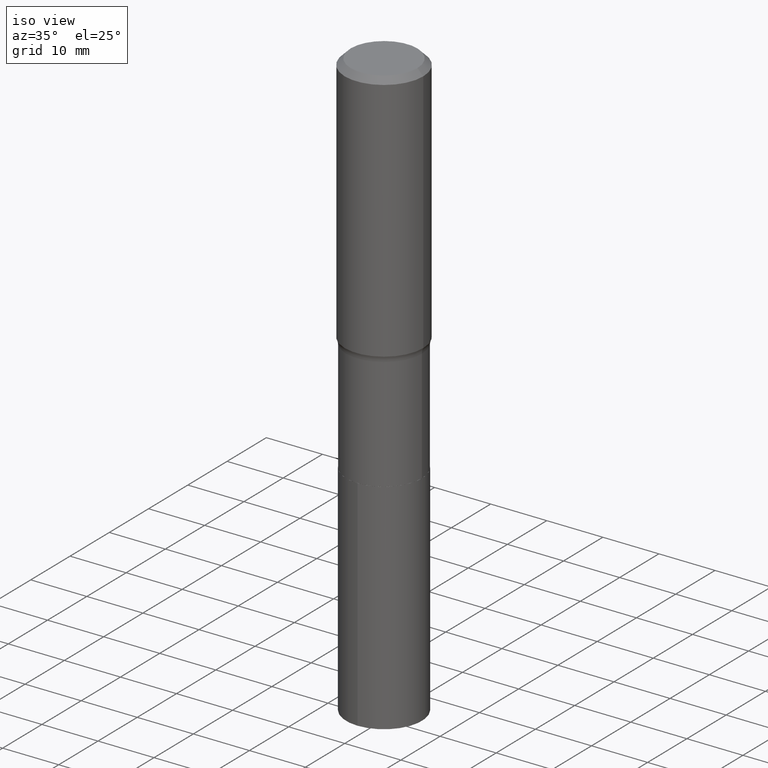
[diagram: clean part render]
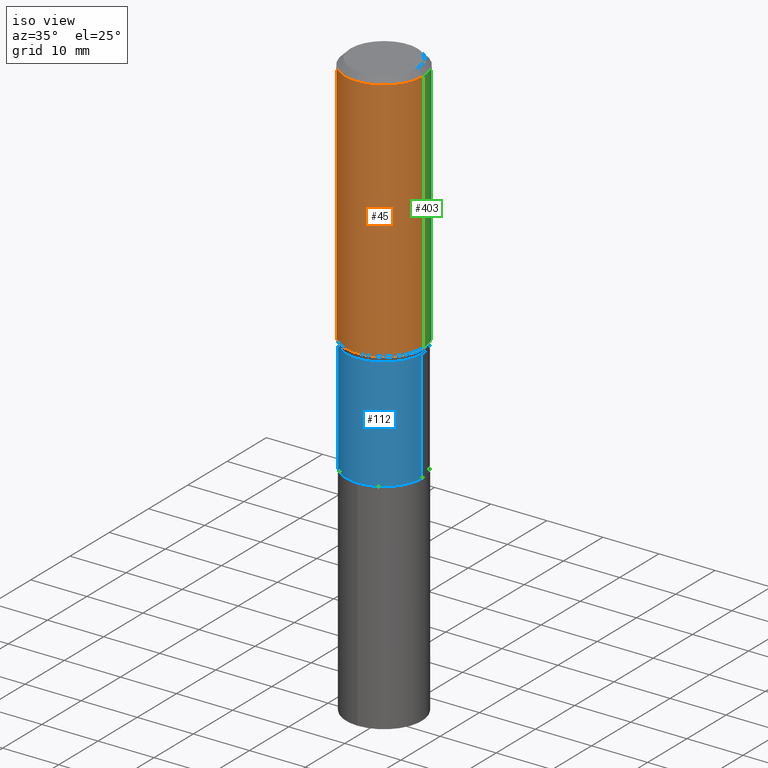
[diagram: same view with three faces highlighted in distinct colors, each labeled with its STEP entity id]
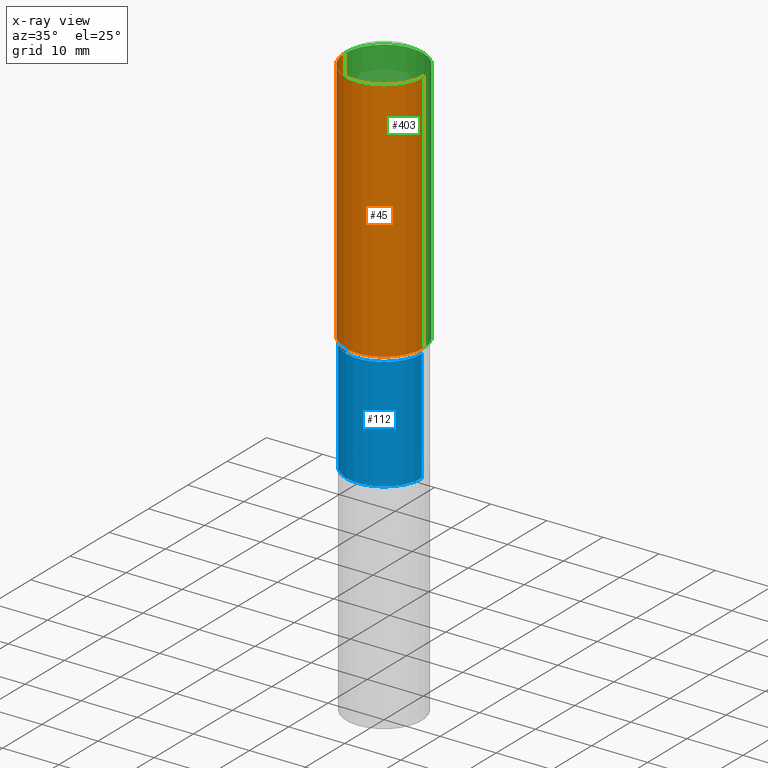
[diagram: x-ray of the same camera — body ghosted, the three highlighted faces saturated]
A machine part, iso view with three faces highlighted in distinct colors.
The next image is the same camera in x-ray (body ghosted, the three faces saturated) — at least one of them is partly hidden behind the body in this view.
Their STEP definitions:

[orange] entity #45 — the highlighted cylindrical surface (partial cylindrical patch) has radius 7.0002 mm, axis along (-0, 0, 1).
#3 = CARTESIAN_POINT ( 'NONE',  ( 1.010956804476941522E-30, -1.443378385477764823E-16, -0.04134000000000024461 ) ) ;
#6 = ORIENTED_EDGE ( 'NONE', *, *, #51, .F. ) ;
#20 = CARTESIAN_POINT ( 'NONE',  ( 0.2756000000000001782, -8.088610654721802073E-15, -1.765470166537925101 ) ) ;
#36 = CARTESIAN_POINT ( 'NONE',  ( 4.317402220518974111E-29, -6.164106140751466330E-15, -1.765470166537925101 ) ) ;
#38 = EDGE_LOOP ( 'NONE', ( #6, #232, #91, #225 ) ) ;
#39 = AXIS2_PLACEMENT_3D ( 'NONE', #3, #88, #162 ) ;
#40 = CIRCLE ( 'NONE', #230, 0.2756000000000001782 ) ;
#42 = DIRECTION ( 'NONE',  ( -2.445468806185136597E-29, 3.491481338843145583E-15, 1.000000000000000000 ) ) ;
#45 = ADVANCED_FACE ( 'NONE', ( #117 ), #111, .T. ) ;
#51 = EDGE_CURVE ( 'NONE', #309, #377, #149, .T. ) ;
#74 = DIRECTION ( 'NONE',  ( 1.000000000000000000, -6.982962677686267499E-15, 4.876176775795935793E-29 ) ) ;
#80 = CARTESIAN_POINT ( 'NONE',  ( 0.000000000000000000, 0.000000000000000000, 0.000000000000000000 ) ) ;
#88 = DIRECTION ( 'NONE',  ( -2.445468806185136597E-29, 3.491481338843145583E-15, 1.000000000000000000 ) ) ;
#91 = ORIENTED_EDGE ( 'NONE', *, *, #139, .T. ) ;
#101 = CARTESIAN_POINT ( 'NONE',  ( 0.2756000000000000116, -2.068842352518111732E-15, -0.04134000000000024461 ) ) ;
#104 = VERTEX_POINT ( 'NONE', #20 ) ;
#111 = CYLINDRICAL_SURFACE ( 'NONE', #278, 0.2756000000000001227 ) ;
#117 = FACE_OUTER_BOUND ( 'NONE', #38, .T. ) ;
#119 = DIRECTION ( 'NONE',  ( -2.445468806185136877E-29, 3.491481338843145188E-15, 1.000000000000000000 ) ) ;
#126 = LINE ( 'NONE', #345, #246 ) ;
#135 = EDGE_CURVE ( 'NONE', #309, #104, #40, .T. ) ;
#139 = EDGE_CURVE ( 'NONE', #104, #399, #126, .T. ) ;
#149 = LINE ( 'NONE', #369, #378 ) ;
#160 = EDGE_CURVE ( 'NONE', #377, #399, #200, .T. ) ;
#162 = DIRECTION ( 'NONE',  ( 1.000000000000000000, -6.982962677686267499E-15, 0.000000000000000000 ) ) ;
#190 = DIRECTION ( 'NONE',  ( -2.445468806185136877E-29, 3.491481338843145188E-15, 1.000000000000000000 ) ) ;
#200 = CIRCLE ( 'NONE', #39, 0.2756000000000000116 ) ;
#207 = CARTESIAN_POINT ( 'NONE',  ( -0.2756000000000000116, -1.195966209894784176E-15, -0.04134000000000024461 ) ) ;
#225 = ORIENTED_EDGE ( 'NONE', *, *, #160, .F. ) ;
#230 = AXIS2_PLACEMENT_3D ( 'NONE', #36, #42, #437 ) ;
#232 = ORIENTED_EDGE ( 'NONE', *, *, #135, .T. ) ;
#246 = VECTOR ( 'NONE', #119, 39.37007874015748143 ) ;
#278 = AXIS2_PLACEMENT_3D ( 'NONE', #80, #396, #74 ) ;
#309 = VERTEX_POINT ( 'NONE', #384 ) ;
#345 = CARTESIAN_POINT ( 'NONE',  ( 0.2756000000000001227, -1.924504513970336137E-15, 1.343874319409360548E-29 ) ) ;
#369 = CARTESIAN_POINT ( 'NONE',  ( -0.2756000000000001227, 1.958255779754836984E-15, -1.355658510874252567E-29 ) ) ;
#377 = VERTEX_POINT ( 'NONE', #207 ) ;
#378 = VECTOR ( 'NONE', #190, 39.37007874015748143 ) ;
#384 = CARTESIAN_POINT ( 'NONE',  ( -0.2756000000000001782, -4.205850360996628952E-15, -1.765470166537925101 ) ) ;
#396 = DIRECTION ( 'NONE',  ( -2.445468806185136597E-29, 3.491481338843145583E-15, 1.000000000000000000 ) ) ;
#399 = VERTEX_POINT ( 'NONE', #101 ) ;
#437 = DIRECTION ( 'NONE',  ( 1.000000000000000000, -6.982962677686265922E-15, 0.000000000000000000 ) ) ;

[blue] entity #112 — the highlighted cylindrical surface (partial cylindrical patch) has radius 6.7462 mm, axis along (-0, 0, 1).
#18 = DIRECTION ( 'NONE',  ( -2.445468806185136597E-29, 3.491481338843145583E-15, 1.000000000000000000 ) ) ;
#22 = DIRECTION ( 'NONE',  ( -2.445468806185136597E-29, 3.491481338843145583E-15, 1.000000000000000000 ) ) ;
#31 = ORIENTED_EDGE ( 'NONE', *, *, #425, .F. ) ;
#48 = VECTOR ( 'NONE', #84, 39.37007874015748143 ) ;
#55 = LINE ( 'NONE', #244, #303 ) ;
#58 = CARTESIAN_POINT ( 'NONE',  ( 0.2655999999999998917, -8.154005518734274413E-15, -1.804199999999999804 ) ) ;
#65 = AXIS2_PLACEMENT_3D ( 'NONE', #446, #282, #347 ) ;
#84 = DIRECTION ( 'NONE',  ( -2.445468806185136877E-29, 3.491481338843145188E-15, 1.000000000000000000 ) ) ;
#93 = DIRECTION ( 'NONE',  ( -2.445468806185136877E-29, 3.491481338843145188E-15, 1.000000000000000000 ) ) ;
#100 = VERTEX_POINT ( 'NONE', #177 ) ;
#103 = CARTESIAN_POINT ( 'NONE',  ( 6.344524270766718466E-29, -9.058299185494657438E-15, -2.594400000000000261 ) ) ;
#112 = ADVANCED_FACE ( 'NONE', ( #322 ), #141, .T. ) ;
#131 = DIRECTION ( 'NONE',  ( 1.000000000000000000, -6.982962677686271444E-15, 0.000000000000000000 ) ) ;
#138 = CIRCLE ( 'NONE', #170, 0.2655999999999998917 ) ;
#141 = CYLINDRICAL_SURFACE ( 'NONE', #65, 0.2655999999999999472 ) ;
#170 = AXIS2_PLACEMENT_3D ( 'NONE', #211, #18, #175 ) ;
#175 = DIRECTION ( 'NONE',  ( 1.000000000000000000, -6.982962677686266711E-15, 0.000000000000000000 ) ) ;
#177 = CARTESIAN_POINT ( 'NONE',  ( -0.2655999999999998917, -5.791613402338903590E-15, -1.804199999999999804 ) ) ;
#193 = EDGE_CURVE ( 'NONE', #276, #100, #262, .T. ) ;
#208 = ORIENTED_EDGE ( 'NONE', *, *, #343, .T. ) ;
#209 = CIRCLE ( 'NONE', #453, 0.2656000000000000028 ) ;
#211 = CARTESIAN_POINT ( 'NONE',  ( 4.412114820119222828E-29, -6.299330631540802758E-15, -1.804199999999999804 ) ) ;
#244 = CARTESIAN_POINT ( 'NONE',  ( 0.2655999999999999472, -1.854674887193472050E-15, 1.295112551651400461E-29 ) ) ;
#262 = LINE ( 'NONE', #404, #48 ) ;
#269 = CARTESIAN_POINT ( 'NONE',  ( 0.2656000000000000028, -1.091297407268813067E-14, -2.594400000000000261 ) ) ;
#276 = VERTEX_POINT ( 'NONE', #424 ) ;
#282 = DIRECTION ( 'NONE',  ( -2.445468806185136597E-29, 3.491481338843145583E-15, 1.000000000000000000 ) ) ;
#303 = VECTOR ( 'NONE', #93, 39.37007874015748143 ) ;
#308 = ORIENTED_EDGE ( 'NONE', *, *, #358, .T. ) ;
#322 = FACE_OUTER_BOUND ( 'NONE', #329, .T. ) ;
#329 = EDGE_LOOP ( 'NONE', ( #408, #208, #308, #31 ) ) ;
#343 = EDGE_CURVE ( 'NONE', #276, #365, #209, .T. ) ;
#347 = DIRECTION ( 'NONE',  ( 1.000000000000000000, -6.982962677686266711E-15, 4.876176775795936353E-29 ) ) ;
#358 = EDGE_CURVE ( 'NONE', #365, #442, #55, .T. ) ;
#365 = VERTEX_POINT ( 'NONE', #269 ) ;
#404 = CARTESIAN_POINT ( 'NONE',  ( -0.2655999999999999472, 1.887201506178825719E-15, -1.306469159971702786E-29 ) ) ;
#408 = ORIENTED_EDGE ( 'NONE', *, *, #193, .F. ) ;
#424 = CARTESIAN_POINT ( 'NONE',  ( -0.2656000000000000028, -5.791613402338903590E-15, -2.594400000000000261 ) ) ;
#425 = EDGE_CURVE ( 'NONE', #100, #442, #138, .T. ) ;
#442 = VERTEX_POINT ( 'NONE', #58 ) ;
#446 = CARTESIAN_POINT ( 'NONE',  ( 0.000000000000000000, 0.000000000000000000, 0.000000000000000000 ) ) ;
#453 = AXIS2_PLACEMENT_3D ( 'NONE', #103, #22, #131 ) ;

[green] entity #403 — the highlighted cylindrical surface (partial cylindrical patch) has radius 7.0002 mm, axis along (-0, 0, 1).
#8 = ORIENTED_EDGE ( 'NONE', *, *, #443, .F. ) ;
#16 = FACE_OUTER_BOUND ( 'NONE', #411, .T. ) ;
#20 = CARTESIAN_POINT ( 'NONE',  ( 0.2756000000000001782, -8.088610654721802073E-15, -1.765470166537925101 ) ) ;
#51 = EDGE_CURVE ( 'NONE', #309, #377, #149, .T. ) ;
#54 = CARTESIAN_POINT ( 'NONE',  ( 0.000000000000000000, 0.000000000000000000, 0.000000000000000000 ) ) ;
#86 = EDGE_CURVE ( 'NONE', #104, #309, #327, .T. ) ;
#101 = CARTESIAN_POINT ( 'NONE',  ( 0.2756000000000000116, -2.068842352518111732E-15, -0.04134000000000024461 ) ) ;
#104 = VERTEX_POINT ( 'NONE', #20 ) ;
#118 = ORIENTED_EDGE ( 'NONE', *, *, #86, .T. ) ;
#119 = DIRECTION ( 'NONE',  ( -2.445468806185136877E-29, 3.491481338843145188E-15, 1.000000000000000000 ) ) ;
#126 = LINE ( 'NONE', #345, #246 ) ;
#139 = EDGE_CURVE ( 'NONE', #104, #399, #126, .T. ) ;
#149 = LINE ( 'NONE', #369, #378 ) ;
#174 = CARTESIAN_POINT ( 'NONE',  ( 1.010956804476941522E-30, -1.443378385477764823E-16, -0.04134000000000024461 ) ) ;
#190 = DIRECTION ( 'NONE',  ( -2.445468806185136877E-29, 3.491481338843145188E-15, 1.000000000000000000 ) ) ;
#202 = AXIS2_PLACEMENT_3D ( 'NONE', #174, #449, #354 ) ;
#205 = DIRECTION ( 'NONE',  ( 1.000000000000000000, -6.982962677686267499E-15, 4.876176775795935793E-29 ) ) ;
#207 = CARTESIAN_POINT ( 'NONE',  ( -0.2756000000000000116, -1.195966209894784176E-15, -0.04134000000000024461 ) ) ;
#233 = ORIENTED_EDGE ( 'NONE', *, *, #139, .F. ) ;
#246 = VECTOR ( 'NONE', #119, 39.37007874015748143 ) ;
#260 = DIRECTION ( 'NONE',  ( -2.445468806185136597E-29, 3.491481338843145583E-15, 1.000000000000000000 ) ) ;
#309 = VERTEX_POINT ( 'NONE', #384 ) ;
#310 = DIRECTION ( 'NONE',  ( -2.445468806185136597E-29, 3.491481338843145583E-15, 1.000000000000000000 ) ) ;
#312 = AXIS2_PLACEMENT_3D ( 'NONE', #54, #310, #205 ) ;
#318 = CYLINDRICAL_SURFACE ( 'NONE', #312, 0.2756000000000001227 ) ;
#319 = AXIS2_PLACEMENT_3D ( 'NONE', #431, #260, #363 ) ;
#327 = CIRCLE ( 'NONE', #319, 0.2756000000000001782 ) ;
#345 = CARTESIAN_POINT ( 'NONE',  ( 0.2756000000000001227, -1.924504513970336137E-15, 1.343874319409360548E-29 ) ) ;
#354 = DIRECTION ( 'NONE',  ( 1.000000000000000000, -6.982962677686267499E-15, 0.000000000000000000 ) ) ;
#363 = DIRECTION ( 'NONE',  ( 1.000000000000000000, -6.982962677686265922E-15, 0.000000000000000000 ) ) ;
#369 = CARTESIAN_POINT ( 'NONE',  ( -0.2756000000000001227, 1.958255779754836984E-15, -1.355658510874252567E-29 ) ) ;
#377 = VERTEX_POINT ( 'NONE', #207 ) ;
#378 = VECTOR ( 'NONE', #190, 39.37007874015748143 ) ;
#384 = CARTESIAN_POINT ( 'NONE',  ( -0.2756000000000001782, -4.205850360996628952E-15, -1.765470166537925101 ) ) ;
#398 = CIRCLE ( 'NONE', #202, 0.2756000000000000116 ) ;
#399 = VERTEX_POINT ( 'NONE', #101 ) ;
#403 = ADVANCED_FACE ( 'NONE', ( #16 ), #318, .T. ) ;
#411 = EDGE_LOOP ( 'NONE', ( #118, #414, #8, #233 ) ) ;
#414 = ORIENTED_EDGE ( 'NONE', *, *, #51, .T. ) ;
#431 = CARTESIAN_POINT ( 'NONE',  ( 4.317402220518974111E-29, -6.164106140751466330E-15, -1.765470166537925101 ) ) ;
#443 = EDGE_CURVE ( 'NONE', #399, #377, #398, .T. ) ;
#449 = DIRECTION ( 'NONE',  ( -2.445468806185136597E-29, 3.491481338843145583E-15, 1.000000000000000000 ) ) ;